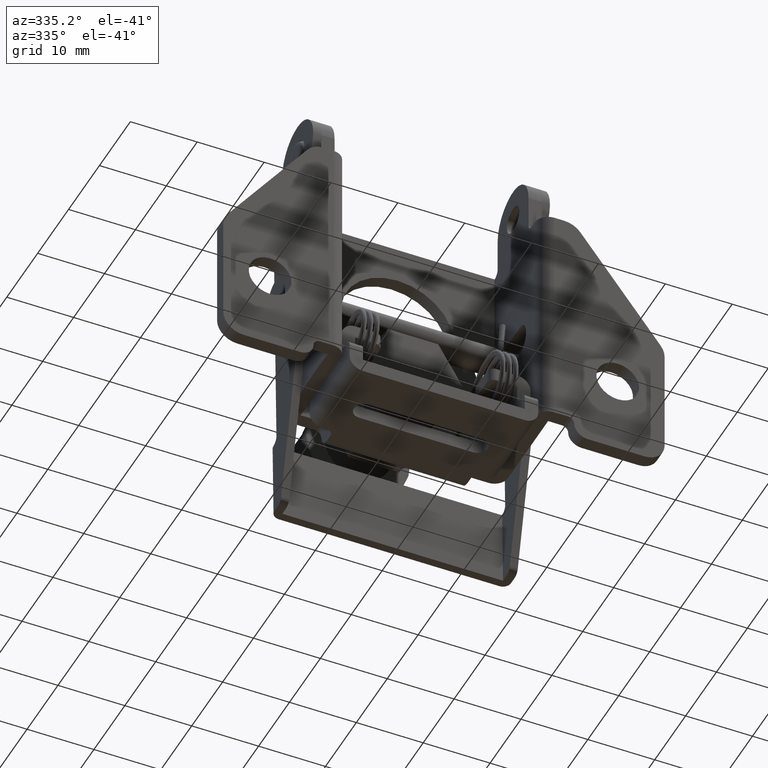
[diagram: clean part render]
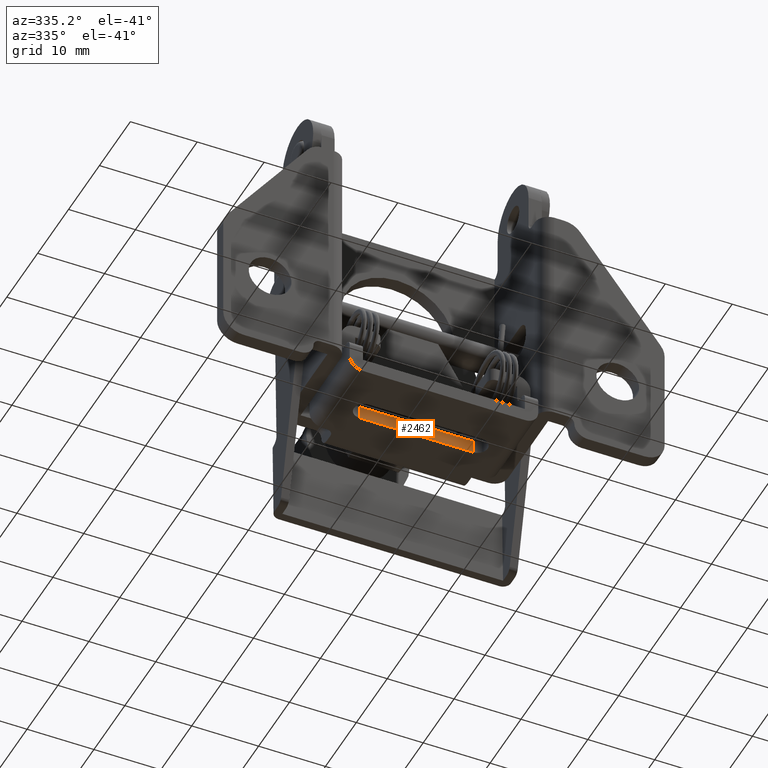
[diagram: same view with one face highlighted and labeled with its STEP entity id]
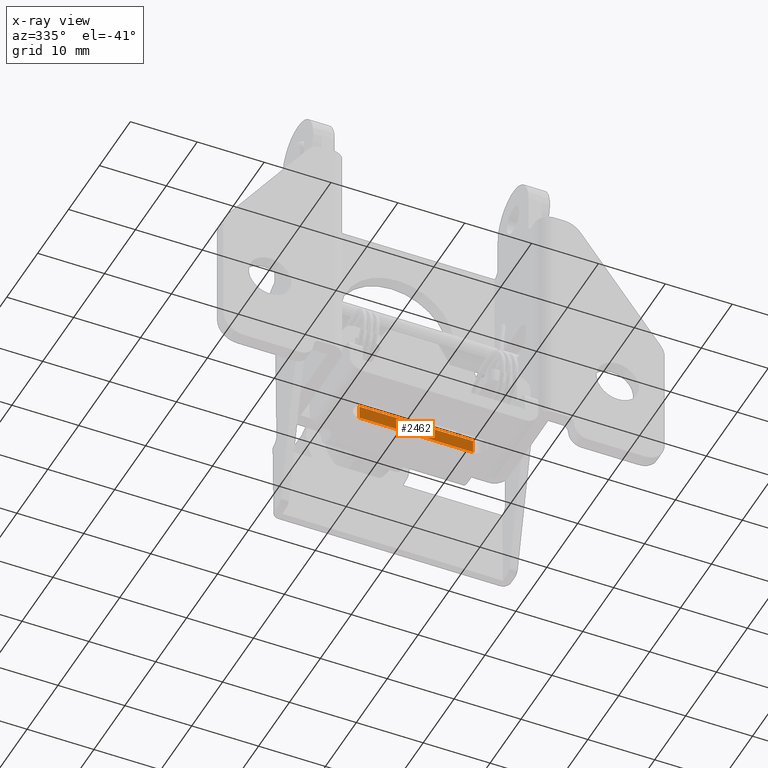
[diagram: x-ray of the same camera — body ghosted, the highlighted face saturated]
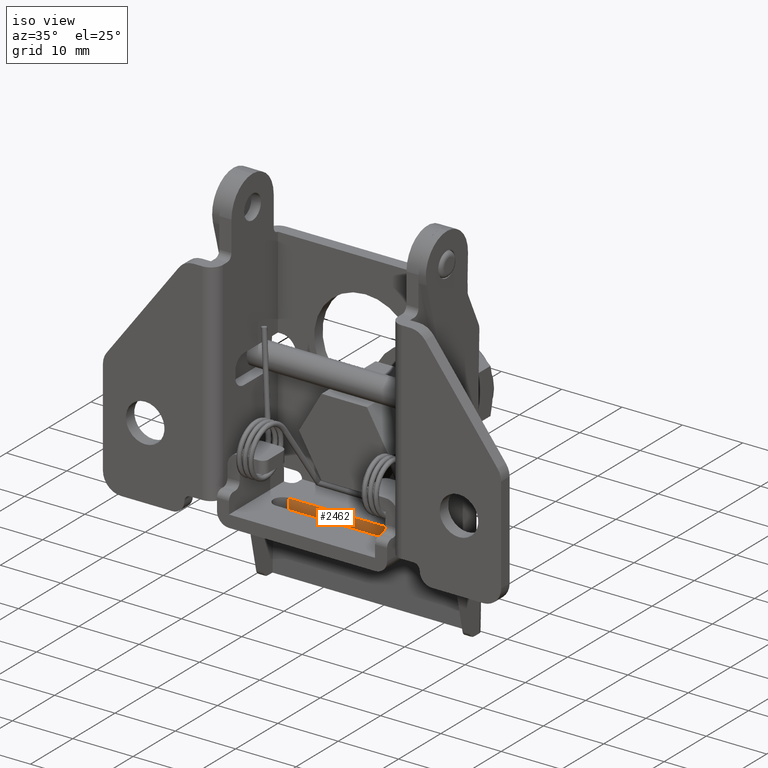
[diagram: same view with one face highlighted and labeled with its STEP entity id]
A machine part, auxiliary view. The second image highlights one B-rep face of the part: STEP entity #2462.
The next image is the same camera in x-ray: the body ghosted, the highlighted face saturated — about 0% of this face is hidden behind the body in this view.
A second angle (iso view) of the same face is appended — the face is thin or edge-on in the first view.
In plain terms, the highlighted planar face has unit normal (0, 1, 0).
Its self-contained STEP definition (entity closure, byte-faithful):
#190 = VERTEX_POINT ( 'NONE', #351 ) ;
#351 = CARTESIAN_POINT ( 'NONE',  ( -8.500000000000000000, 9.000000000000005300, -12.00000000000000200 ) ) ;
#446 = DIRECTION ( 'NONE',  ( 0.0000000000000000000, 1.000000000000000000, -0.0000000000000000000 ) ) ;
#917 = DIRECTION ( 'NONE',  ( 1.000000000000000000, 0.0000000000000000000, -1.652117596168387800E-016 ) ) ;
#1333 = CARTESIAN_POINT ( 'NONE',  ( -8.499999999999998200, 9.000000000000007100, -10.00000000000000200 ) ) ;
#2274 = DIRECTION ( 'NONE',  ( -8.260587980841938800E-017, -0.0000000000000000000, -1.000000000000000000 ) ) ;
#2462 = ADVANCED_FACE ( 'NONE', ( #3588 ), #8180, .F. ) ;
#2726 = ORIENTED_EDGE ( 'NONE', *, *, #2901, .T. ) ;
#2901 = EDGE_CURVE ( 'NONE', #190, #10095, #6125, .T. ) ;
#3236 = ORIENTED_EDGE ( 'NONE', *, *, #3885, .F. ) ;
#3412 = CARTESIAN_POINT ( 'NONE',  ( 8.499999999999996400, 9.000000000000005300, -12.00000000000000200 ) ) ;
#3577 = VECTOR ( 'NONE', #4215, 1000.000000000000000 ) ;
#3588 = FACE_OUTER_BOUND ( 'NONE', #6073, .T. ) ;
#3885 = EDGE_CURVE ( 'NONE', #8733, #10095, #4039, .T. ) ;
#4039 = LINE ( 'NONE', #8059, #7916 ) ;
#4215 = DIRECTION ( 'NONE',  ( 1.000000000000000000, -0.0000000000000000000, -0.0000000000000000000 ) ) ;
#4373 = ORIENTED_EDGE ( 'NONE', *, *, #8096, .F. ) ;
#4596 = VECTOR ( 'NONE', #2274, 1000.000000000000000 ) ;
#4665 = VERTEX_POINT ( 'NONE', #1333 ) ;
#4682 = ORIENTED_EDGE ( 'NONE', *, *, #4813, .T. ) ;
#4813 = EDGE_CURVE ( 'NONE', #4665, #190, #8474, .T. ) ;
#5098 = CARTESIAN_POINT ( 'NONE',  ( 8.500000000000000000, 9.000000000000005300, 37.00099999999999800 ) ) ;
#5874 = DIRECTION ( 'NONE',  ( 0.0000000000000000000, 0.0000000000000000000, 1.000000000000000000 ) ) ;
#6073 = EDGE_LOOP ( 'NONE', ( #4682, #2726, #3236, #4373 ) ) ;
#6125 = LINE ( 'NONE', #3412, #3577 ) ;
#6237 = VECTOR ( 'NONE', #917, 1000.000000000000000 ) ;
#6740 = AXIS2_PLACEMENT_3D ( 'NONE', #5098, #446, #5874 ) ;
#6910 = CARTESIAN_POINT ( 'NONE',  ( -8.499999999999996400, 9.000000000000005300, 37.00099999999999800 ) ) ;
#7082 = CARTESIAN_POINT ( 'NONE',  ( 8.499999999999992900, 9.000000000000005300, -10.00000000000000200 ) ) ;
#7916 = VECTOR ( 'NONE', #8818, 1000.000000000000000 ) ;
#8059 = CARTESIAN_POINT ( 'NONE',  ( 8.500000000000000000, 9.000000000000005300, 37.00099999999999800 ) ) ;
#8096 = EDGE_CURVE ( 'NONE', #4665, #8733, #8297, .T. ) ;
#8180 = PLANE ( 'NONE',  #6740 ) ;
#8297 = LINE ( 'NONE', #7082, #6237 ) ;
#8474 = LINE ( 'NONE', #6910, #4596 ) ;
#8733 = VERTEX_POINT ( 'NONE', #9400 ) ;
#8818 = DIRECTION ( 'NONE',  ( -8.260587980841938800E-017, -0.0000000000000000000, -1.000000000000000000 ) ) ;
#9131 = CARTESIAN_POINT ( 'NONE',  ( 8.499999999999996400, 9.000000000000005300, -12.00000000000000200 ) ) ;
#9400 = CARTESIAN_POINT ( 'NONE',  ( 8.500000000000000000, 9.000000000000005300, -10.00000000000000200 ) ) ;
#10095 = VERTEX_POINT ( 'NONE', #9131 ) ;